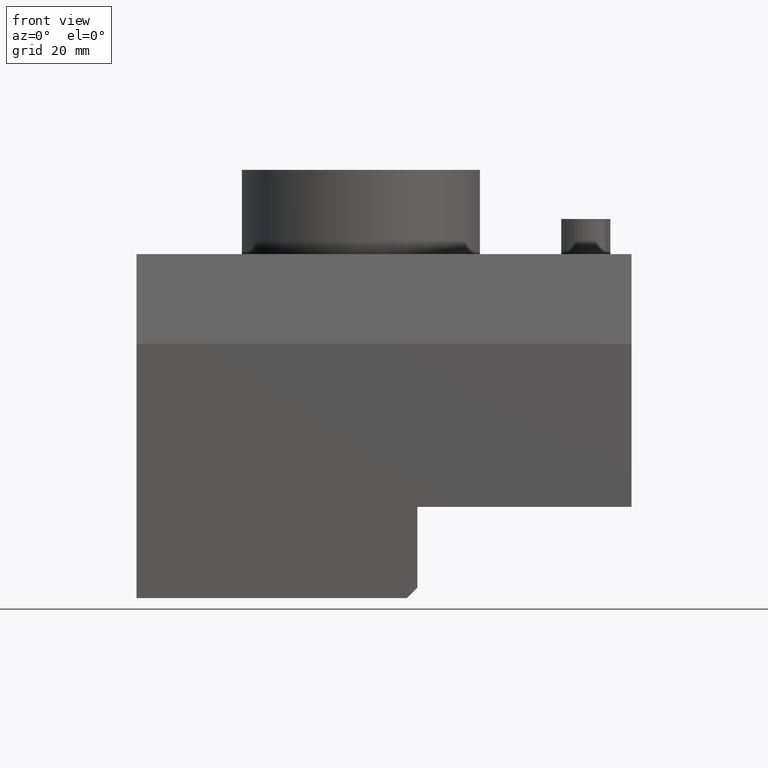
[diagram: clean part render]
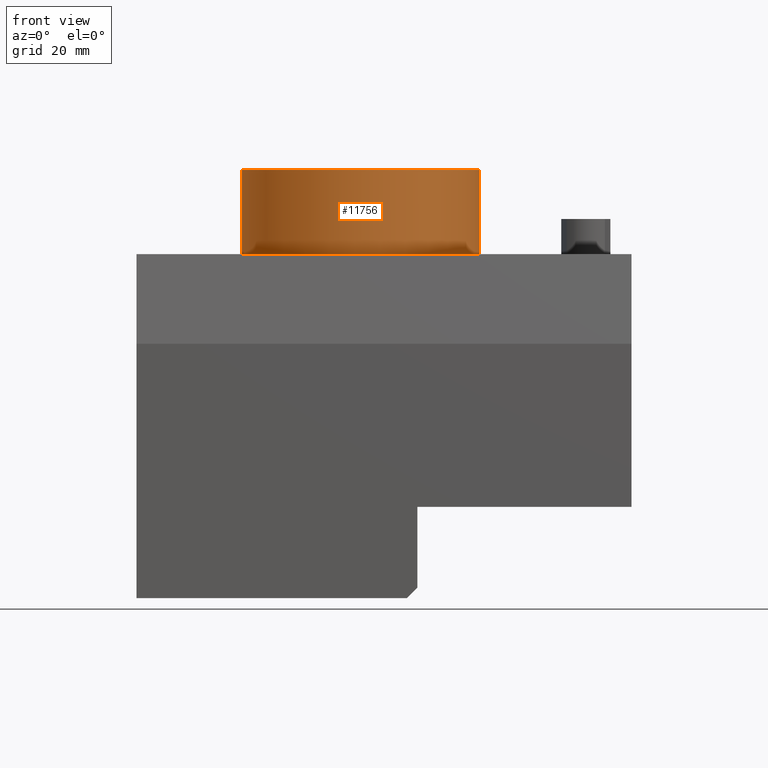
[diagram: same view with one face highlighted and labeled with its STEP entity id]
A machine part, front view. The second image highlights one B-rep face of the part: STEP entity #11756.
In plain terms, the highlighted cylindrical surface (bore or boss wall) has radius 34 mm, axis along (0, 0, 1).
Its self-contained STEP definition (entity closure, byte-faithful):
#6519 = PLANE('',#6520);
#6520 = AXIS2_PLACEMENT_3D('',#6521,#6522,#6523);
#6521 = CARTESIAN_POINT('',(-64.,-42.,6.490409630726E-015));
#6522 = DIRECTION('',(0.E+000,0.E+000,-1.));
#6523 = DIRECTION('',(1.,0.E+000,0.E+000));
#6683 = EDGE_CURVE('',#6684,#6684,#6686,.T.);
#6684 = VERTEX_POINT('',#6685);
#6685 = CARTESIAN_POINT('',(-34.,0.E+000,6.490409630726E-015));
#6686 = SURFACE_CURVE('',#6687,(#6692,#6699),.PCURVE_S1.);
#6687 = CIRCLE('',#6688,34.);
#6688 = AXIS2_PLACEMENT_3D('',#6689,#6690,#6691);
#6689 = CARTESIAN_POINT('',(3.469446951954E-015,0.E+000,
    6.490409630726E-015));
#6690 = DIRECTION('',(-0.E+000,-0.E+000,-1.));
#6691 = DIRECTION('',(-1.,0.E+000,0.E+000));
#6692 = PCURVE('',#6519,#6693);
#6693 = DEFINITIONAL_REPRESENTATION('',(#6694),#6698);
#6694 = CIRCLE('',#6695,34.);
#6695 = AXIS2_PLACEMENT_2D('',#6696,#6697);
#6696 = CARTESIAN_POINT('',(64.,-42.));
#6697 = DIRECTION('',(-1.,0.E+000));
#6698 = ( GEOMETRIC_REPRESENTATION_CONTEXT(2) 
PARAMETRIC_REPRESENTATION_CONTEXT() REPRESENTATION_CONTEXT('2D SPACE',''
  ) );
#6699 = PCURVE('',#6700,#6705);
#6700 = CYLINDRICAL_SURFACE('',#6701,34.);
#6701 = AXIS2_PLACEMENT_3D('',#6702,#6703,#6704);
#6702 = CARTESIAN_POINT('',(3.469446951954E-015,0.E+000,24.));
#6703 = DIRECTION('',(0.E+000,0.E+000,1.));
#6704 = DIRECTION('',(1.,0.E+000,0.E+000));
#6705 = DEFINITIONAL_REPRESENTATION('',(#6706),#6709);
#6706 = B_SPLINE_CURVE_WITH_KNOTS('',1,(#6707,#6708),.UNSPECIFIED.,.F.,
  .F.,(2,2),(0.E+000,6.28318530718),.PIECEWISE_BEZIER_KNOTS.);
#6707 = CARTESIAN_POINT('',(9.424777960769,-24.));
#6708 = CARTESIAN_POINT('',(3.14159265359,-24.));
#6709 = ( GEOMETRIC_REPRESENTATION_CONTEXT(2) 
PARAMETRIC_REPRESENTATION_CONTEXT() REPRESENTATION_CONTEXT('2D SPACE',''
  ) );
#11729 = EDGE_CURVE('',#11730,#11730,#11732,.T.);
#11730 = VERTEX_POINT('',#11731);
#11731 = CARTESIAN_POINT('',(-34.,0.E+000,24.));
#11732 = SURFACE_CURVE('',#11733,(#11738,#11750),.PCURVE_S1.);
#11733 = CIRCLE('',#11734,34.);
#11734 = AXIS2_PLACEMENT_3D('',#11735,#11736,#11737);
#11735 = CARTESIAN_POINT('',(3.469446951954E-015,0.E+000,24.));
#11736 = DIRECTION('',(-0.E+000,-0.E+000,-1.));
#11737 = DIRECTION('',(-1.,0.E+000,0.E+000));
#11738 = PCURVE('',#11739,#11744);
#11739 = PLANE('',#11740);
#11740 = AXIS2_PLACEMENT_3D('',#11741,#11742,#11743);
#11741 = CARTESIAN_POINT('',(3.469446951954E-015,0.E+000,24.));
#11742 = DIRECTION('',(0.E+000,0.E+000,-1.));
#11743 = DIRECTION('',(1.,0.E+000,0.E+000));
#11744 = DEFINITIONAL_REPRESENTATION('',(#11745),#11749);
#11745 = CIRCLE('',#11746,34.);
#11746 = AXIS2_PLACEMENT_2D('',#11747,#11748);
#11747 = CARTESIAN_POINT('',(0.E+000,0.E+000));
#11748 = DIRECTION('',(-1.,0.E+000));
#11749 = ( GEOMETRIC_REPRESENTATION_CONTEXT(2) 
PARAMETRIC_REPRESENTATION_CONTEXT() REPRESENTATION_CONTEXT('2D SPACE',''
  ) );
#11750 = PCURVE('',#6700,#11751);
#11751 = DEFINITIONAL_REPRESENTATION('',(#11752),#11755);
#11752 = B_SPLINE_CURVE_WITH_KNOTS('',1,(#11753,#11754),.UNSPECIFIED.,
  .F.,.F.,(2,2),(0.E+000,6.28318530718),.PIECEWISE_BEZIER_KNOTS.);
#11753 = CARTESIAN_POINT('',(9.424777960769,0.E+000));
#11754 = CARTESIAN_POINT('',(3.14159265359,0.E+000));
#11755 = ( GEOMETRIC_REPRESENTATION_CONTEXT(2) 
PARAMETRIC_REPRESENTATION_CONTEXT() REPRESENTATION_CONTEXT('2D SPACE',''
  ) );
#11756 = ADVANCED_FACE('',(#11757),#6700,.T.);
#11757 = FACE_BOUND('',#11758,.T.);
#11758 = EDGE_LOOP('',(#11759,#11760,#11780,#11781));
#11759 = ORIENTED_EDGE('',*,*,#11729,.T.);
#11760 = ORIENTED_EDGE('',*,*,#11761,.F.);
#11761 = EDGE_CURVE('',#6684,#11730,#11762,.T.);
#11762 = SEAM_CURVE('',#11763,(#11766,#11773),.PCURVE_S1.);
#11763 = B_SPLINE_CURVE_WITH_KNOTS('',1,(#11764,#11765),.UNSPECIFIED.,
  .F.,.F.,(2,2),(-24.,0.E+000),.PIECEWISE_BEZIER_KNOTS.);
#11764 = CARTESIAN_POINT('',(-34.,1.24913973513E-014,7.105427357601E-015
    ));
#11765 = CARTESIAN_POINT('',(-34.,1.24913973513E-014,24.));
#11766 = PCURVE('',#6700,#11767);
#11767 = DEFINITIONAL_REPRESENTATION('',(#11768),#11772);
#11768 = LINE('',#11769,#11770);
#11769 = CARTESIAN_POINT('',(3.14159265359,0.E+000));
#11770 = VECTOR('',#11771,1.);
#11771 = DIRECTION('',(0.E+000,1.));
#11772 = ( GEOMETRIC_REPRESENTATION_CONTEXT(2) 
PARAMETRIC_REPRESENTATION_CONTEXT() REPRESENTATION_CONTEXT('2D SPACE',''
  ) );
#11773 = PCURVE('',#6700,#11774);
#11774 = DEFINITIONAL_REPRESENTATION('',(#11775),#11779);
#11775 = LINE('',#11776,#11777);
#11776 = CARTESIAN_POINT('',(9.424777960769,0.E+000));
#11777 = VECTOR('',#11778,1.);
#11778 = DIRECTION('',(0.E+000,1.));
#11779 = ( GEOMETRIC_REPRESENTATION_CONTEXT(2) 
PARAMETRIC_REPRESENTATION_CONTEXT() REPRESENTATION_CONTEXT('2D SPACE',''
  ) );
#11780 = ORIENTED_EDGE('',*,*,#6683,.F.);
#11781 = ORIENTED_EDGE('',*,*,#11761,.T.);